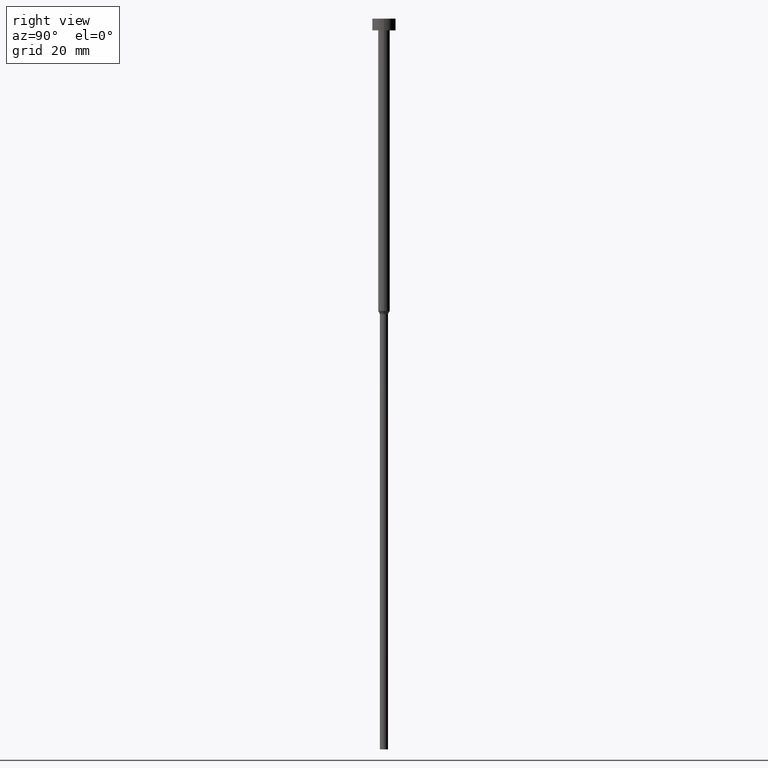
[diagram: clean part render]
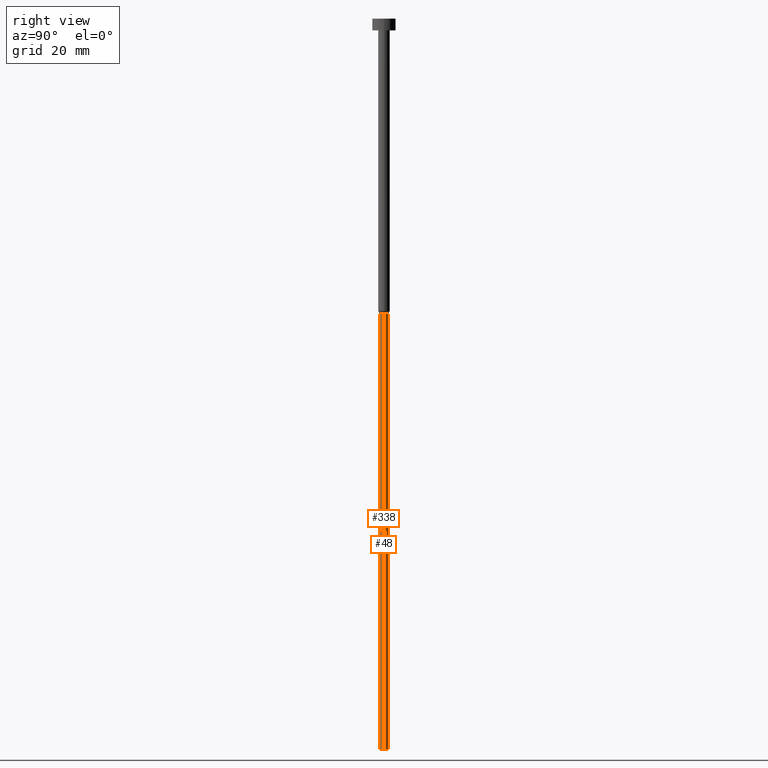
[diagram: same view with one multi-face feature highlighted, each face labeled with its STEP entity id]
A machine part, right view. The highlighted faces form ONE feature: a constant-radius fillet chain: 2 tangent blend faces with common blend radius 0.7 mm. The faces share edges in the B-rep.
Their STEP definitions:
[1] entity #338 (Cylinder):
#10 = CARTESIAN_POINT ( 'NONE',  ( -0.6999999999999999556, 8.572527594031473190E-17, -50.51961524227067457 ) ) ;
#12 = VECTOR ( 'NONE', #149, 1000.000000000000000 ) ;
#19 = DIRECTION ( 'NONE',  ( -0.000000000000000000, -0.000000000000000000, 1.000000000000000000 ) ) ;
#20 = VERTEX_POINT ( 'NONE', #312 ) ;
#21 = VECTOR ( 'NONE', #19, 1000.000000000000000 ) ;
#43 = FACE_OUTER_BOUND ( 'NONE', #291, .T. ) ;
#45 = DIRECTION ( 'NONE',  ( 1.000000000000000000, 0.000000000000000000, 0.000000000000000000 ) ) ;
#50 = LINE ( 'NONE', #184, #21 ) ;
#51 = EDGE_CURVE ( 'NONE', #183, #161, #151, .T. ) ;
#54 = AXIS2_PLACEMENT_3D ( 'NONE', #117, #175, #286 ) ;
#64 = EDGE_CURVE ( 'NONE', #344, #161, #94, .T. ) ;
#85 = EDGE_CURVE ( 'NONE', #20, #183, #122, .T. ) ;
#94 = CIRCLE ( 'NONE', #230, 0.6999999999999999556 ) ;
#117 = CARTESIAN_POINT ( 'NONE',  ( 0.000000000000000000, 0.000000000000000000, 0.000000000000000000 ) ) ;
#122 = CIRCLE ( 'NONE', #241, 0.6999999999999998446 ) ;
#124 = CARTESIAN_POINT ( 'NONE',  ( 0.000000000000000000, 0.000000000000000000, -125.0000000000000000 ) ) ;
#126 = CARTESIAN_POINT ( 'NONE',  ( 0.000000000000000000, 0.000000000000000000, -50.51961524227067457 ) ) ;
#149 = DIRECTION ( 'NONE',  ( -0.000000000000000000, -0.000000000000000000, 1.000000000000000000 ) ) ;
#151 = LINE ( 'NONE', #258, #12 ) ;
#157 = ORIENTED_EDGE ( 'NONE', *, *, #64, .F. ) ;
#161 = VERTEX_POINT ( 'NONE', #182 ) ;
#164 = ORIENTED_EDGE ( 'NONE', *, *, #167, .F. ) ;
#167 = EDGE_CURVE ( 'NONE', #20, #344, #50, .T. ) ;
#175 = DIRECTION ( 'NONE',  ( -0.000000000000000000, -0.000000000000000000, 1.000000000000000000 ) ) ;
#182 = CARTESIAN_POINT ( 'NONE',  ( 0.6999999999999999556, 0.000000000000000000, -50.51961524227067457 ) ) ;
#183 = VERTEX_POINT ( 'NONE', #290 ) ;
#184 = CARTESIAN_POINT ( 'NONE',  ( -0.6999999999999998446, 8.572527594031470725E-17, 0.000000000000000000 ) ) ;
#187 = ORIENTED_EDGE ( 'NONE', *, *, #85, .T. ) ;
#230 = AXIS2_PLACEMENT_3D ( 'NONE', #126, #287, #45 ) ;
#232 = DIRECTION ( 'NONE',  ( -0.000000000000000000, -0.000000000000000000, 1.000000000000000000 ) ) ;
#241 = AXIS2_PLACEMENT_3D ( 'NONE', #124, #232, #342 ) ;
#258 = CARTESIAN_POINT ( 'NONE',  ( 0.6999999999999998446, 0.000000000000000000, 0.000000000000000000 ) ) ;
#286 = DIRECTION ( 'NONE',  ( 1.000000000000000000, 0.000000000000000000, 0.000000000000000000 ) ) ;
#287 = DIRECTION ( 'NONE',  ( -0.000000000000000000, -0.000000000000000000, 1.000000000000000000 ) ) ;
#290 = CARTESIAN_POINT ( 'NONE',  ( 0.6999999999999998446, 0.000000000000000000, -125.0000000000000000 ) ) ;
#291 = EDGE_LOOP ( 'NONE', ( #164, #187, #293, #157 ) ) ;
#293 = ORIENTED_EDGE ( 'NONE', *, *, #51, .T. ) ;
#308 = CYLINDRICAL_SURFACE ( 'NONE', #54, 0.6999999999999998446 ) ;
#312 = CARTESIAN_POINT ( 'NONE',  ( -0.6999999999999998446, 8.572527594031470725E-17, -125.0000000000000000 ) ) ;
#338 = ADVANCED_FACE ( 'NONE', ( #43 ), #308, .T. ) ;
#342 = DIRECTION ( 'NONE',  ( 1.000000000000000000, 0.000000000000000000, 0.000000000000000000 ) ) ;
#344 = VERTEX_POINT ( 'NONE', #10 ) ;
[2] entity #48 (Cylinder):
#10 = CARTESIAN_POINT ( 'NONE',  ( -0.6999999999999999556, 8.572527594031473190E-17, -50.51961524227067457 ) ) ;
#11 = CYLINDRICAL_SURFACE ( 'NONE', #223, 0.6999999999999998446 ) ;
#12 = VECTOR ( 'NONE', #149, 1000.000000000000000 ) ;
#19 = DIRECTION ( 'NONE',  ( -0.000000000000000000, -0.000000000000000000, 1.000000000000000000 ) ) ;
#20 = VERTEX_POINT ( 'NONE', #312 ) ;
#21 = VECTOR ( 'NONE', #19, 1000.000000000000000 ) ;
#30 = ORIENTED_EDGE ( 'NONE', *, *, #167, .T. ) ;
#42 = DIRECTION ( 'NONE',  ( -0.000000000000000000, -0.000000000000000000, 1.000000000000000000 ) ) ;
#48 = ADVANCED_FACE ( 'NONE', ( #98 ), #11, .T. ) ;
#50 = LINE ( 'NONE', #184, #21 ) ;
#51 = EDGE_CURVE ( 'NONE', #183, #161, #151, .T. ) ;
#76 = CIRCLE ( 'NONE', #275, 0.6999999999999999556 ) ;
#81 = EDGE_CURVE ( 'NONE', #161, #344, #76, .T. ) ;
#88 = DIRECTION ( 'NONE',  ( -0.000000000000000000, -0.000000000000000000, 1.000000000000000000 ) ) ;
#98 = FACE_OUTER_BOUND ( 'NONE', #101, .T. ) ;
#101 = EDGE_LOOP ( 'NONE', ( #350, #30, #327, #323 ) ) ;
#118 = CIRCLE ( 'NONE', #153, 0.6999999999999998446 ) ;
#119 = CARTESIAN_POINT ( 'NONE',  ( 0.000000000000000000, 0.000000000000000000, 0.000000000000000000 ) ) ;
#121 = DIRECTION ( 'NONE',  ( 1.000000000000000000, 0.000000000000000000, 0.000000000000000000 ) ) ;
#149 = DIRECTION ( 'NONE',  ( -0.000000000000000000, -0.000000000000000000, 1.000000000000000000 ) ) ;
#151 = LINE ( 'NONE', #258, #12 ) ;
#153 = AXIS2_PLACEMENT_3D ( 'NONE', #249, #88, #251 ) ;
#161 = VERTEX_POINT ( 'NONE', #182 ) ;
#167 = EDGE_CURVE ( 'NONE', #20, #344, #50, .T. ) ;
#181 = DIRECTION ( 'NONE',  ( -0.000000000000000000, -0.000000000000000000, 1.000000000000000000 ) ) ;
#182 = CARTESIAN_POINT ( 'NONE',  ( 0.6999999999999999556, 0.000000000000000000, -50.51961524227067457 ) ) ;
#183 = VERTEX_POINT ( 'NONE', #290 ) ;
#184 = CARTESIAN_POINT ( 'NONE',  ( -0.6999999999999998446, 8.572527594031470725E-17, 0.000000000000000000 ) ) ;
#223 = AXIS2_PLACEMENT_3D ( 'NONE', #119, #42, #261 ) ;
#249 = CARTESIAN_POINT ( 'NONE',  ( 0.000000000000000000, 0.000000000000000000, -125.0000000000000000 ) ) ;
#251 = DIRECTION ( 'NONE',  ( 1.000000000000000000, 0.000000000000000000, 0.000000000000000000 ) ) ;
#258 = CARTESIAN_POINT ( 'NONE',  ( 0.6999999999999998446, 0.000000000000000000, 0.000000000000000000 ) ) ;
#261 = DIRECTION ( 'NONE',  ( 1.000000000000000000, 0.000000000000000000, 0.000000000000000000 ) ) ;
#275 = AXIS2_PLACEMENT_3D ( 'NONE', #284, #181, #121 ) ;
#284 = CARTESIAN_POINT ( 'NONE',  ( 0.000000000000000000, 0.000000000000000000, -50.51961524227067457 ) ) ;
#290 = CARTESIAN_POINT ( 'NONE',  ( 0.6999999999999998446, 0.000000000000000000, -125.0000000000000000 ) ) ;
#305 = EDGE_CURVE ( 'NONE', #183, #20, #118, .T. ) ;
#312 = CARTESIAN_POINT ( 'NONE',  ( -0.6999999999999998446, 8.572527594031470725E-17, -125.0000000000000000 ) ) ;
#323 = ORIENTED_EDGE ( 'NONE', *, *, #51, .F. ) ;
#327 = ORIENTED_EDGE ( 'NONE', *, *, #81, .F. ) ;
#344 = VERTEX_POINT ( 'NONE', #10 ) ;
#350 = ORIENTED_EDGE ( 'NONE', *, *, #305, .T. ) ;